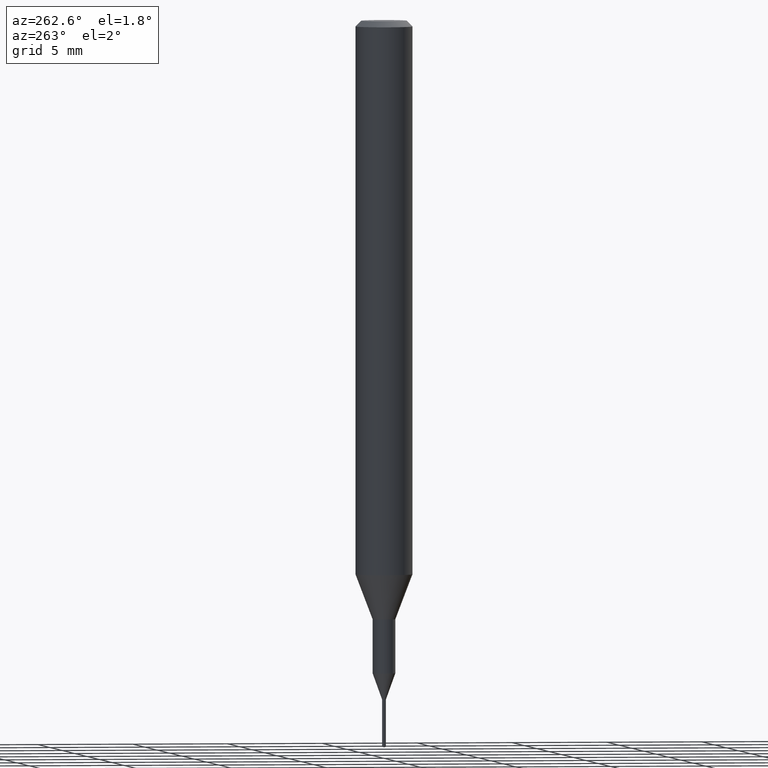
[diagram: clean part render]
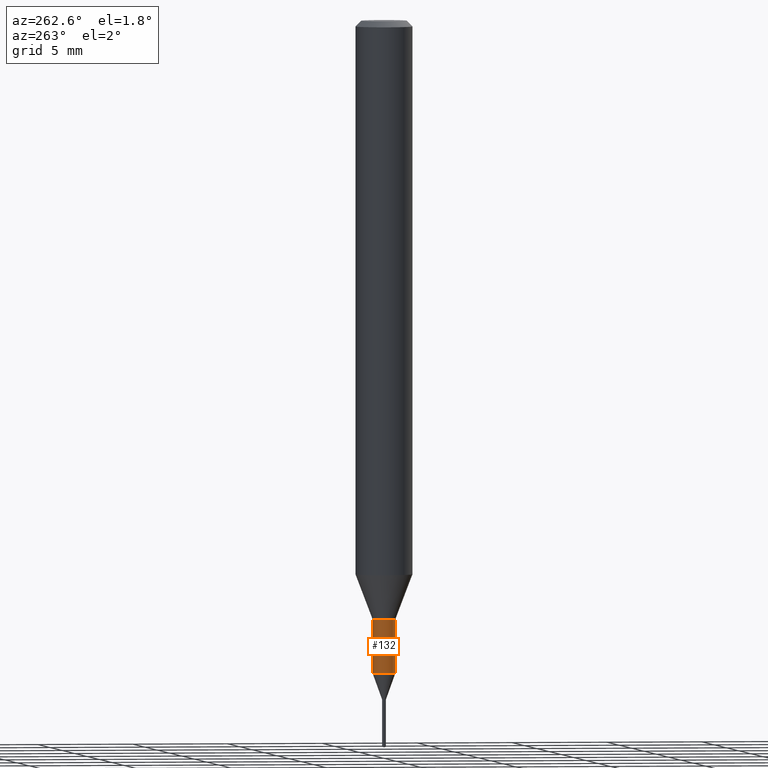
[diagram: same view with one face highlighted and labeled with its STEP entity id]
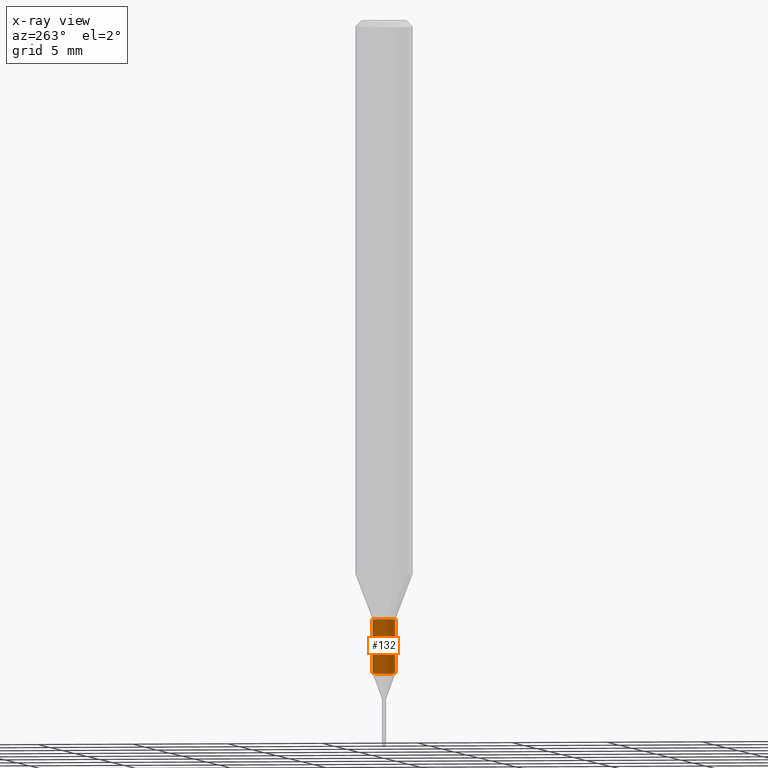
[diagram: x-ray of the same camera — body ghosted, the highlighted face saturated]
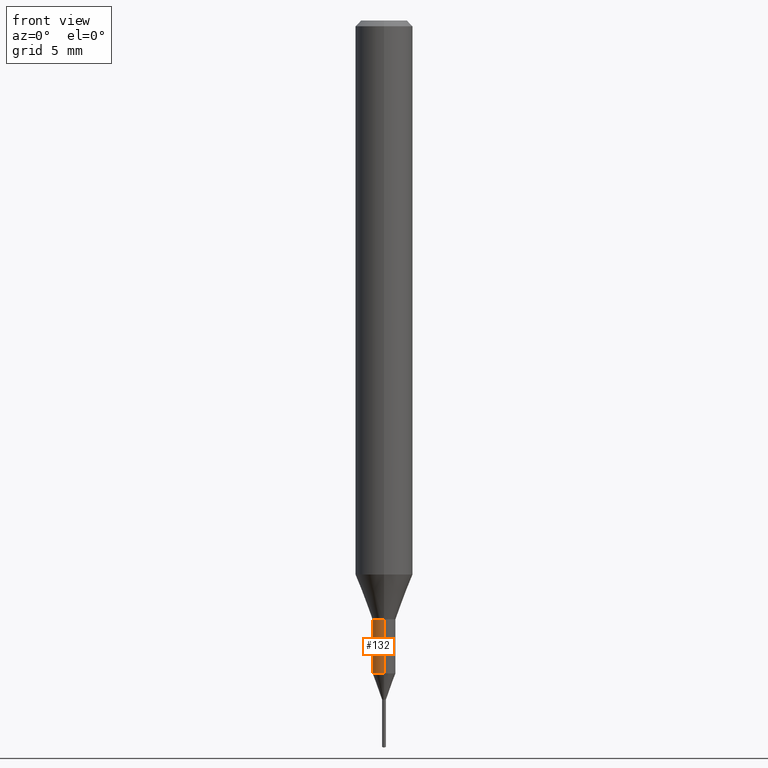
[diagram: same view with one face highlighted and labeled with its STEP entity id]
A machine part, auxiliary view. The second image highlights one B-rep face of the part: STEP entity #132.
The next image is the same camera in x-ray: the body ghosted, the highlighted face saturated — about 0% of this face is hidden behind the body in this view.
A second angle (front view) of the same face is appended — the face is thin or edge-on in the first view.
In plain terms, the highlighted cylindrical surface (edge-blend (fillet) strip) has radius 0.5999 mm, axis along (-0, -0, 1).
Its self-contained STEP definition (entity closure, byte-faithful):
#132=ADVANCED_FACE('',(#311),#312,.T.);
#138=EDGE_CURVE('',#250,#206,#318,.T.);
#180=EDGE_CURVE('',#206,#200,#365,.T.);
#200=VERTEX_POINT('',#388);
#206=VERTEX_POINT('',#396);
#214=EDGE_CURVE('',#250,#218,#404,.T.);
#218=VERTEX_POINT('',#408);
#238=EDGE_CURVE('',#200,#218,#431,.T.);
#250=VERTEX_POINT('',#445);
#311=FACE_OUTER_BOUND('',#507,.T.);
#312=CYLINDRICAL_SURFACE('',#508,0.59995);
#318=LINE('',#519,#520);
#365=CIRCLE('',#583,0.59995);
#388=CARTESIAN_POINT('',(0.0,0.59995,-31.3));
#396=CARTESIAN_POINT('',(7.34702581975735E-017,-0.59995,-31.3));
#404=CIRCLE('',#629,0.59995);
#408=CARTESIAN_POINT('',(0.0,0.59995,-34.126));
#431=LINE('',#663,#664);
#445=CARTESIAN_POINT('',(7.34702581975735E-017,-0.59995,-34.126));
#507=EDGE_LOOP('',(#737,#738,#739,#740));
#508=AXIS2_PLACEMENT_3D('',#741,#742,#743);
#519=CARTESIAN_POINT('',(7.34702581975735E-017,-0.59995,-32.713));
#520=VECTOR('',#746,1.0);
#583=AXIS2_PLACEMENT_3D('',#804,#805,#806);
#629=AXIS2_PLACEMENT_3D('',#850,#851,#852);
#663=CARTESIAN_POINT('',(-7.34702581975735E-017,0.59995,-32.713));
#664=VECTOR('',#890,1.0);
#737=ORIENTED_EDGE('',*,*,#238,.T.);
#738=ORIENTED_EDGE('',*,*,#214,.F.);
#739=ORIENTED_EDGE('',*,*,#138,.T.);
#740=ORIENTED_EDGE('',*,*,#180,.T.);
#741=CARTESIAN_POINT('',(0.0,0.0,-32.713));
#742=DIRECTION('',(-0.0,-0.0,1.0));
#743=DIRECTION('',(0.0,1.0,0.0));
#746=DIRECTION('',(-0.0,-0.0,1.0));
#804=CARTESIAN_POINT('',(0.0,0.0,-31.3));
#805=DIRECTION('',(0.0,0.0,-1.0));
#806=DIRECTION('',(0.0,1.0,0.0));
#850=CARTESIAN_POINT('',(0.0,0.0,-34.126));
#851=DIRECTION('',(0.0,0.0,-1.0));
#852=DIRECTION('',(0.0,1.0,0.0));
#890=DIRECTION('',(0.0,0.0,-1.0));